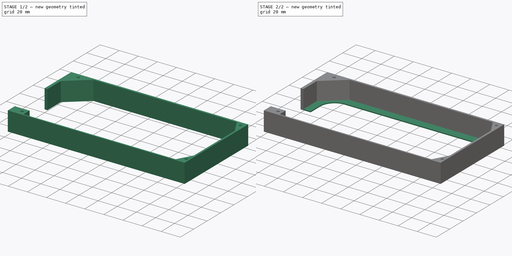
[diagram: build sequence overview — one tinted view per stage of 2, left to right]
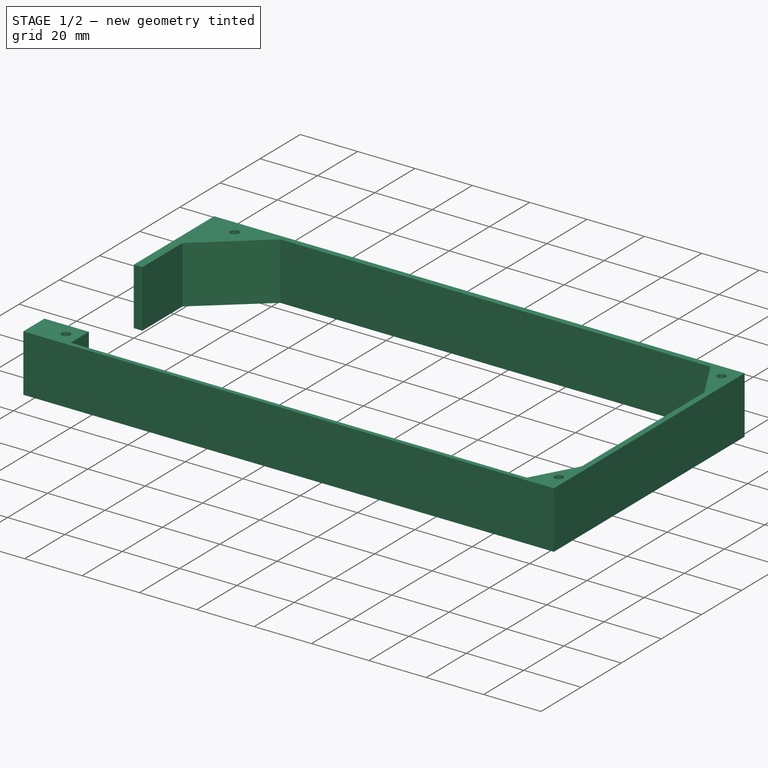
[diagram: stage 1 of 2 — iso view after this stage's code; geometry added in this stage tinted green]
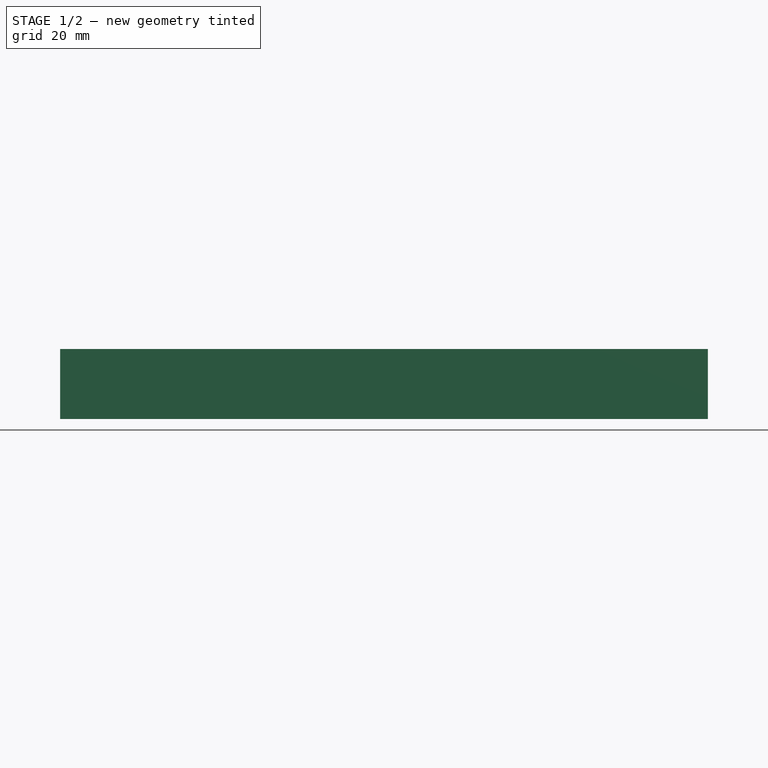
[diagram: stage 1 of 2 — front view after this stage's code; geometry added in this stage tinted green]
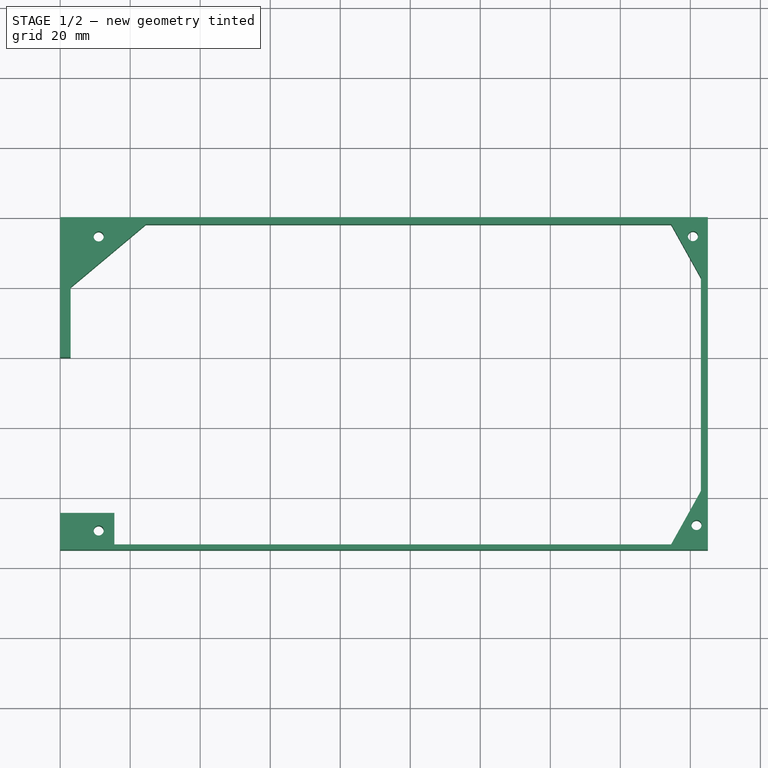
[diagram: stage 1 of 2 — top view after this stage's code; geometry added in this stage tinted green]
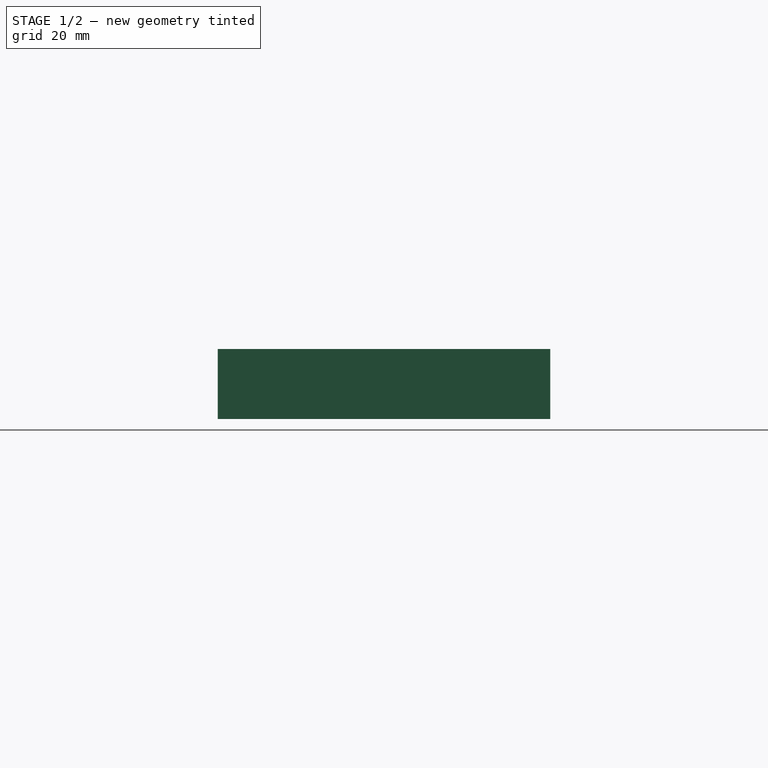
[diagram: stage 1 of 2 — right view after this stage's code; geometry added in this stage tinted green]
FCSTD DOCUMENT  (FreeCAD 0.19R24366 (Git))
Label: PCBholder
License: All rights reserved
LicenseURL: http://en.wikipedia.org/wiki/All_rights_reserved
objects: App::Part×3, Part::Feature×2, Sketcher::SketchObject×2, PartDesign::Pad×2, PartDesign::Body×1
note: 9 computed .brp shape members not serialized (recipe doc carries the construction recipe); baked Part::Feature solids carry a one-line shape summary decoded from their .brp

FEATURE [Part::Feature] Part__Feature  label="SOLID"
  shape: bbox 34.69 x 30 x 150 mm, 252 faces (baked)
FEATURE [App::Part] lam_3_k
  Group = -> [Part__Feature]
  Origin = -> Origin
  Placement = pos=(30.3,-45,22.6225) rot=(0.57735,0.57735,0.57735;2.0944rad)
FEATURE [Part::Feature] Part__Feature001  label="EL-Load-V2 PCB"
  shape: bbox 185 x 95 x 1.573 mm, 151 faces (baked)
FEATURE [App::Part] EL_Load_V2_1  label="EL-Load-V2 1"
  Group = -> [lam_3_k,Part__Feature001]
  Origin = -> Origin001
  Placement = pos=(-25,20,20) rot=(0,0,1;0rad)
FEATURE [Sketcher::SketchObject] Sketch
  FullyConstrained = true
  MapMode = 5
  Support = -> [XY_Plane003]
  sketch-geometry (22):
    g0: LineSegment StartX=0 StartY=0 StartZ=0 EndX=185 EndY=0 EndZ=0
    g1: LineSegment StartX=185 StartY=0 StartZ=0 EndX=185 EndY=-95 EndZ=0
    g2: LineSegment StartX=185 StartY=-95 StartZ=0 EndX=0 EndY=-95 EndZ=0
    g3: LineSegment StartX=0 StartY=-95 StartZ=0 EndX=0 EndY=0 EndZ=0
    g4: Circle CenterX=180.738 CenterY=-5.40342 CenterZ=0 NormalX=0 NormalY=0 NormalZ=1 AngleXU=0 Radius=1.45
    g5: Circle CenterX=11 CenterY=-5.5 CenterZ=0 NormalX=0 NormalY=0 NormalZ=1 AngleXU=0 Radius=1.45
    g6: Circle CenterX=11 CenterY=-89.5 CenterZ=0 NormalX=0 NormalY=0 NormalZ=1 AngleXU=0 Radius=1.45
    g7: Circle CenterX=181.757 CenterY=-87.949 CenterZ=0 NormalX=0 NormalY=0 NormalZ=1 AngleXU=0 Radius=1.45
    g8: LineSegment StartX=11 StartY=-5.5 StartZ=0 EndX=11 EndY=-89.5 EndZ=0
    g9: LineSegment StartX=24.5 StartY=-2 StartZ=0 EndX=174.5 EndY=-2 EndZ=0
    g10: LineSegment StartX=174.5 StartY=-2 StartZ=0 EndX=183 EndY=-17.25 EndZ=0
    g11: LineSegment StartX=183 StartY=-17.25 StartZ=0 EndX=183 EndY=-78.25 EndZ=0
    g12: LineSegment StartX=183 StartY=-78.25 StartZ=0 EndX=174.5 EndY=-93.5 EndZ=0
    g13: LineSegment StartX=174.5 StartY=-93.5 StartZ=0 EndX=15.5 EndY=-93.5 EndZ=0
    g14: LineSegment StartX=24.5 StartY=-2 StartZ=0 EndX=3 EndY=-20 EndZ=0
    g15: LineSegment StartX=3 StartY=-20 StartZ=0 EndX=3 EndY=-40 EndZ=0
    g16: LineSegment StartX=3 StartY=-40 StartZ=0 EndX=0 EndY=-40 EndZ=0
    g17: LineSegment StartX=15.5 StartY=-93.5 StartZ=0 EndX=15.5 EndY=-84.5 EndZ=0
    g18: LineSegment StartX=15.5 StartY=-84.5 StartZ=0 EndX=0 EndY=-84.5 EndZ=0
    g19: LineSegment StartX=174.5 StartY=-2 StartZ=0 EndX=174.5 EndY=-93.5 EndZ=0
    g20: LineSegment StartX=0 StartY=0 StartZ=0 EndX=0 EndY=-40 EndZ=0
    g21: LineSegment StartX=0 StartY=-84.5 StartZ=0 EndX=0 EndY=-95 EndZ=0
  constraints (63):
    c: Horizontal(g0)
    c: Coincident(g1,g0)
    c: Vertical(g1)
    c: Coincident(g2,g1)
    c: Horizontal(g2)
    c: Coincident(g3,g2)
    c: Coincident(g3,g0)
    c: Vertical(g3)
    c: DistanceX(g5) = 11
    c: DistanceY(g5) = -5.5
    c: Coincident(g8,g5)
    c: Coincident(g8,g6)
    c: Vertical(g8)
    c: Distance(g8) = 84
    c: DistanceY(g-1,g0) = 0
    c: DistanceX(g0,g-1) = 0
    c: DistanceY(g3,g3) = 95
    c: DistanceX(g2,g2) = 185
    c: DistanceX(g4) = 180.738
    c: DistanceY(g4) = -5.40342
    c: DistanceX(g7) = 181.757
    c: DistanceY(g7) = -87.949
    c: Equal(g5,g6)
    c: Equal(g5,g4)
    c: Equal(g5,g7)
    c: Diameter(g5) = 2.9
    c: Horizontal(g9)
    c: Coincident(g10,g9)
    c: Coincident(g11,g10)
    c: Vertical(g11)
    c: Coincident(g12,g11)
    c: Coincident(g13,g12)
    c: Horizontal(g13)
    c: Coincident(g14,g9)
    c: Coincident(g15,g14)
    c: Vertical(g15)
    c: Coincident(g16,g15)
    c: PointOnObject(g16,g-2)
    c: Horizontal(g16)
    c: Coincident(g17,g13)
    c: Vertical(g17)
    c: Coincident(g18,g17)
    c: PointOnObject(g18,g3)
    c: Horizontal(g18)
    c: DistanceX(g18,g18) = 15.5
    c: DistanceY(g17,g17) = 9
    c: DistanceY(g1,g12) = 1.5
    c: DistanceX(g10,g0) = 2
    c: Coincident(g19,g9)
    c: Coincident(g19,g12)
    c: Vertical(g19)
    c: Equal(g12,g10)
    c: DistanceY(g9,g0) = 2
    c: Distance(g11) = 61
    c: Distance(g13) = 159
    c: Distance(g16) = 3
    c: Distance(g15) = 20
    c: DistanceY(g16,g-1) = 40
    c: Distance(g9) = 150
    c: Coincident(g20,g0)
    c: Coincident(g20,g16)
    c: Coincident(g21,g18)
    c: Coincident(g21,g2)
FEATURE [PartDesign::Pad] Pad
  Direction = (1,1,1)
  Length = 20
  Length2 = 100
  Profile = -> Sketch
  Type = 0
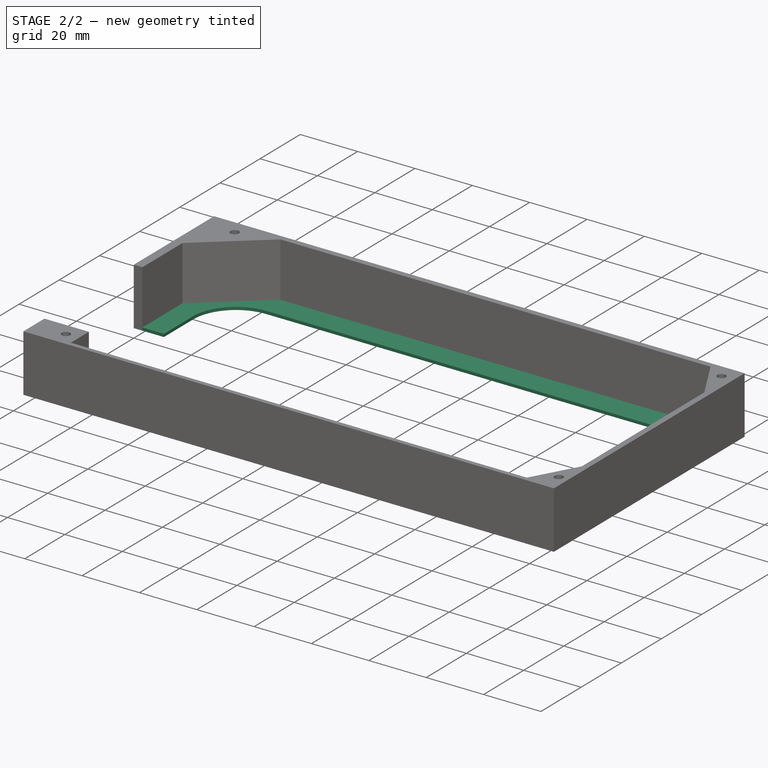
[diagram: stage 2 of 2 — iso view after this stage's code; geometry added in this stage tinted green]
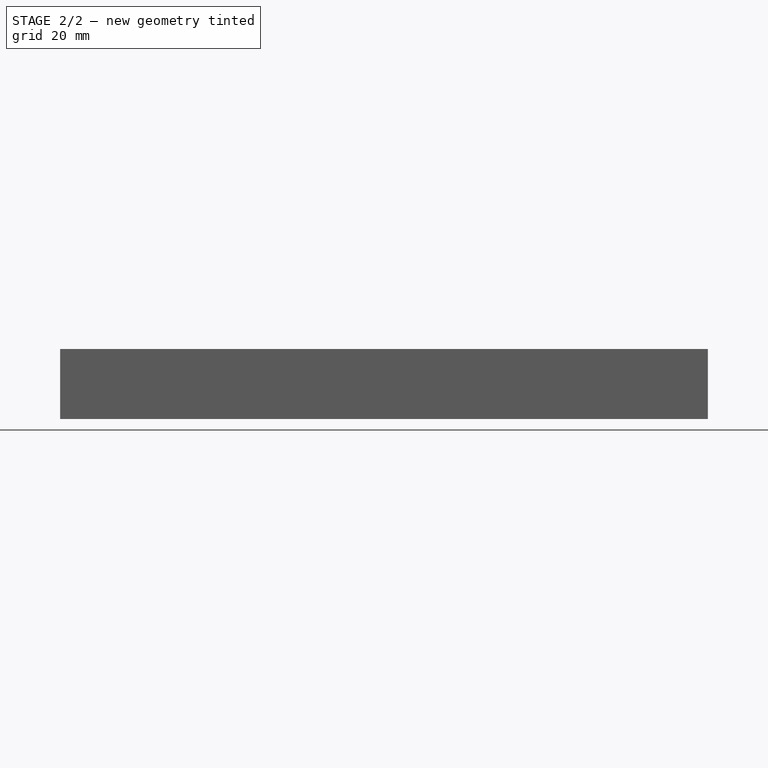
[diagram: stage 2 of 2 — front view after this stage's code; geometry added in this stage tinted green]
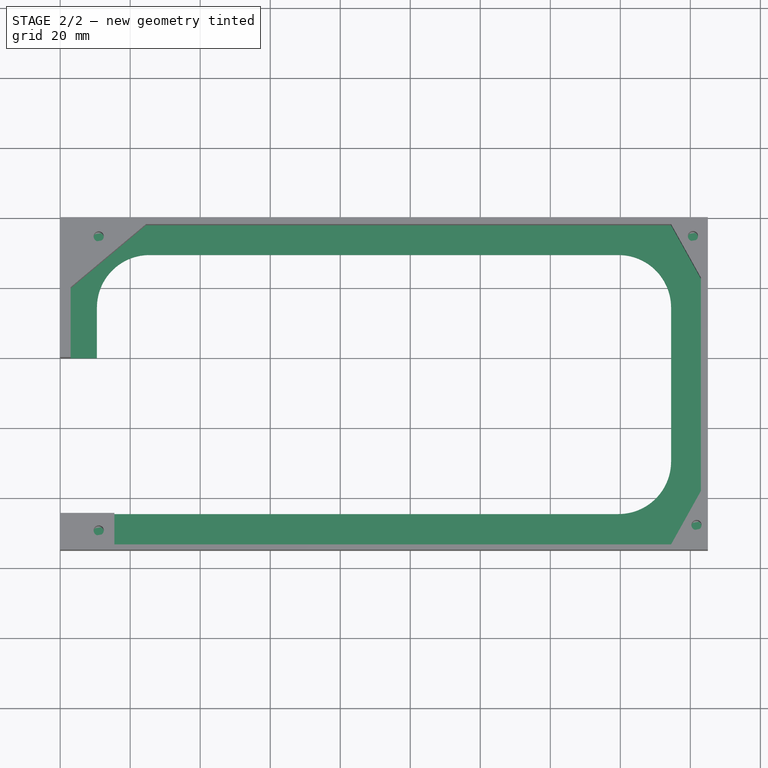
[diagram: stage 2 of 2 — top view after this stage's code; geometry added in this stage tinted green]
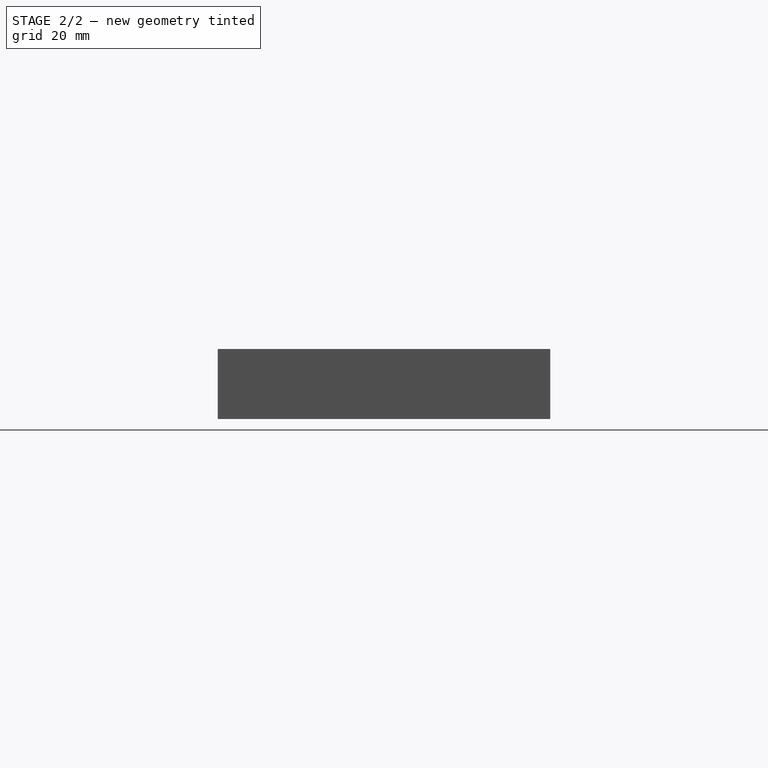
[diagram: stage 2 of 2 — right view after this stage's code; geometry added in this stage tinted green]
FEATURE [Sketcher::SketchObject] Sketch001
  ExternalGeometry = -> [Sketch]
  FullyConstrained = true
  MapMode = 5
  Support = -> [XY_Plane003]
  sketch-geometry (18):
    g0: LineSegment StartX=0 StartY=-84.5 StartZ=0 EndX=0 EndY=-95 EndZ=0
    g1: LineSegment StartX=0 StartY=-95 StartZ=0 EndX=185 EndY=-95 EndZ=0
    g2: LineSegment StartX=185 StartY=-95 StartZ=0 EndX=185 EndY=0 EndZ=0
    g3: LineSegment StartX=185 StartY=0 StartZ=0 EndX=0 EndY=0 EndZ=0
    g4: LineSegment StartX=0 StartY=0 StartZ=0 EndX=0 EndY=-40 EndZ=0
    g5: LineSegment StartX=0 StartY=-40 StartZ=0 EndX=10.5 EndY=-40 EndZ=0
    g6: LineSegment StartX=10.5 StartY=-40 StartZ=0 EndX=10.5 EndY=-25.5 EndZ=0
    g7: LineSegment StartX=25.5 StartY=-10.5 StartZ=0 EndX=159.5 EndY=-10.5 EndZ=0
    g8: LineSegment StartX=174.5 StartY=-25.5 StartZ=0 EndX=174.5 EndY=-69.5 EndZ=0
    g9: LineSegment StartX=159.5 StartY=-84.5 StartZ=0 EndX=0 EndY=-84.5 EndZ=0
    g10: ArcOfCircle CenterX=159.5 CenterY=-25.5 CenterZ=0 NormalX=0 NormalY=0 NormalZ=1 AngleXU=0 Radius=15 StartAngle=0 EndAngle=1.5708
    g11: GeomPoint X=174.5 Y=-10.5 Z=0
    g12: ArcOfCircle CenterX=159.5 CenterY=-69.5 CenterZ=0 NormalX=0 NormalY=0 NormalZ=1 AngleXU=0 Radius=15 StartAngle=4.71239 EndAngle=6.28319
    g13: GeomPoint X=174.5 Y=-84.5 Z=0
    g14: ArcOfCircle CenterX=25.5 CenterY=-25.5 CenterZ=0 NormalX=0 NormalY=0 NormalZ=1 AngleXU=0 Radius=15 StartAngle=1.5708 EndAngle=3.14159
    g15: GeomPoint X=10.5 Y=-10.5 Z=0
    g16: LineSegment StartX=25.5 StartY=-10.5 StartZ=0 EndX=25.5 EndY=0 EndZ=0
    g17: LineSegment StartX=174.5 StartY=-25.5 StartZ=0 EndX=185 EndY=-25.5 EndZ=0
  constraints (42):
    c: Coincident(g-5,g0)
    c: Coincident(g0,g-5)
    c: Coincident(g0,g1)
    c: Coincident(g1,g-3)
    c: Coincident(g1,g2)
    c: Coincident(g2,g-3)
    c: Coincident(g2,g3)
    c: Coincident(g3,g-1)
    c: Coincident(g3,g4)
    c: Coincident(g4,g-4)
    c: Coincident(g4,g5)
    c: Horizontal(g5)
    c: Coincident(g5,g6)
    c: Vertical(g6)
    c: Horizontal(g7)
    c: Vertical(g8)
    c: Coincident(g9,g0)
    c: Horizontal(g9)
    c: PointOnObject(g11,g7)
    c: PointOnObject(g11,g8)
    c: Tangent(g7,g10) = 1.5708
    c: Tangent(g8,g10) = 1.5708
    c: PointOnObject(g13,g8)
    c: PointOnObject(g13,g9)
    c: Tangent(g8,g12) = 1.5708
    c: Tangent(g9,g12) = 1.5708
    c: PointOnObject(g15,g6)
    c: PointOnObject(g15,g7)
    c: Tangent(g6,g14) = 1.5708
    c: Tangent(g7,g14) = 1.5708
    c: Equal(g12,g10)
    c: Equal(g10,g14)
    c: Equal(g0,g5)
    c: Coincident(g16,g7)
    c: PointOnObject(g16,g3)
    c: Vertical(g16)
    c: Coincident(g17,g8)
    c: PointOnObject(g17,g2)
    c: Horizontal(g17)
    c: Equal(g17,g16)
    c: Equal(g16,g5)
    c: Radius(g12) = 15
FEATURE [PartDesign::Pad] Pad001
  BaseFeature = -> Pad
  Direction = (1,1,1)
  Length = 1
  Length2 = 100
  Profile = -> Sketch001
  Type = 0
FEATURE [PartDesign::Body] Body
  Group = -> [Sketch,Pad,Sketch001,Pad001]
  Origin = -> Origin003
  Tip = -> Pad001
FEATURE [App::Part] Part
  Group = -> [Body]
  Origin = -> Origin002
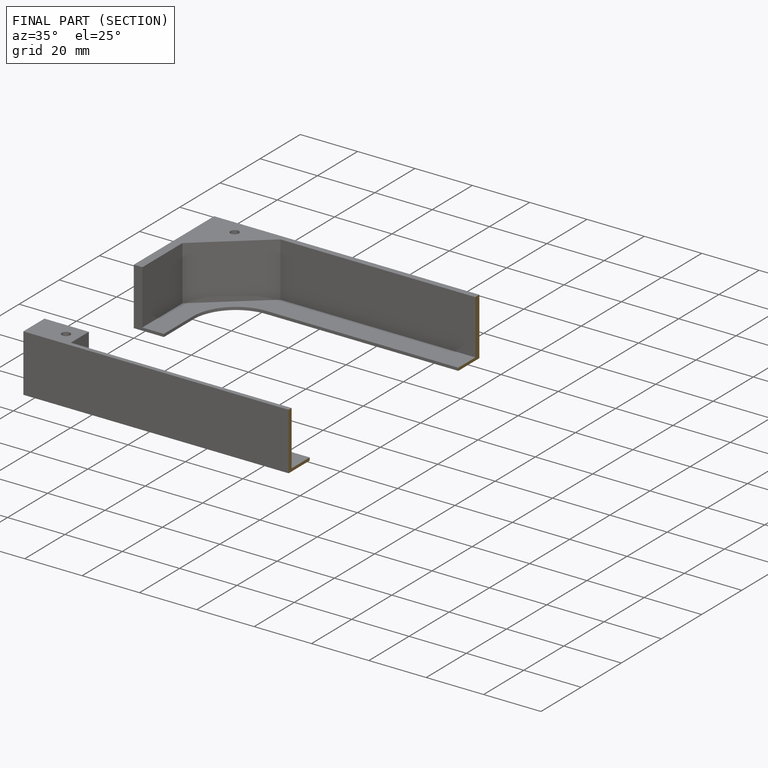
[diagram: finished part — half-section view (interior)]
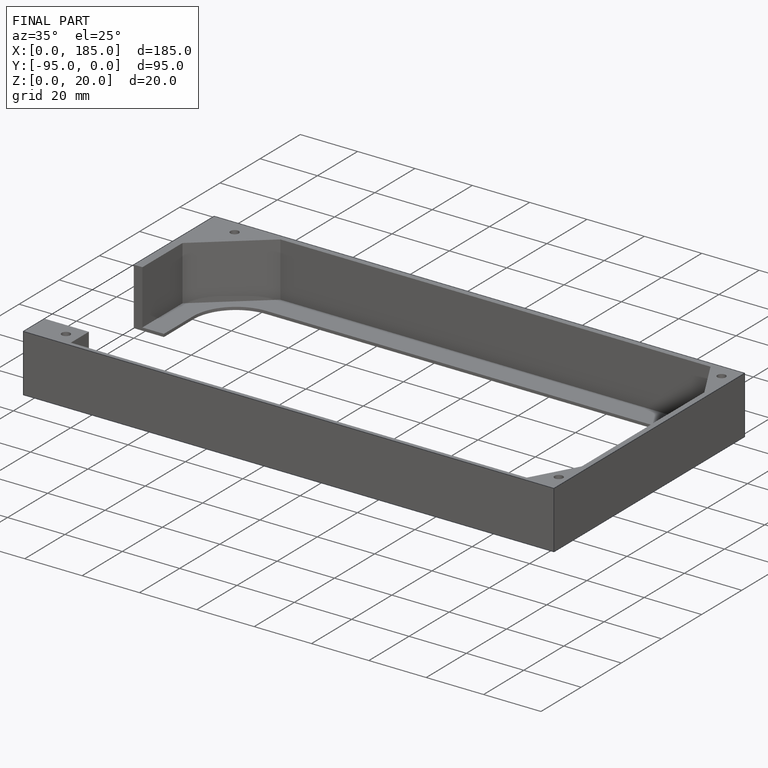
[diagram: finished part — iso view with bounding-box wireframe]
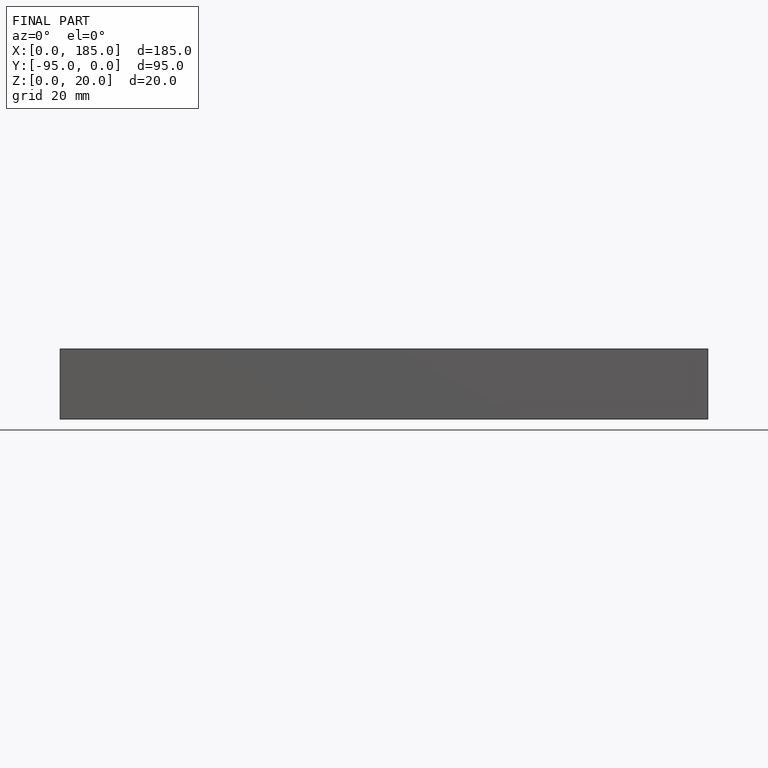
[diagram: finished part — front view with bounding-box wireframe]
